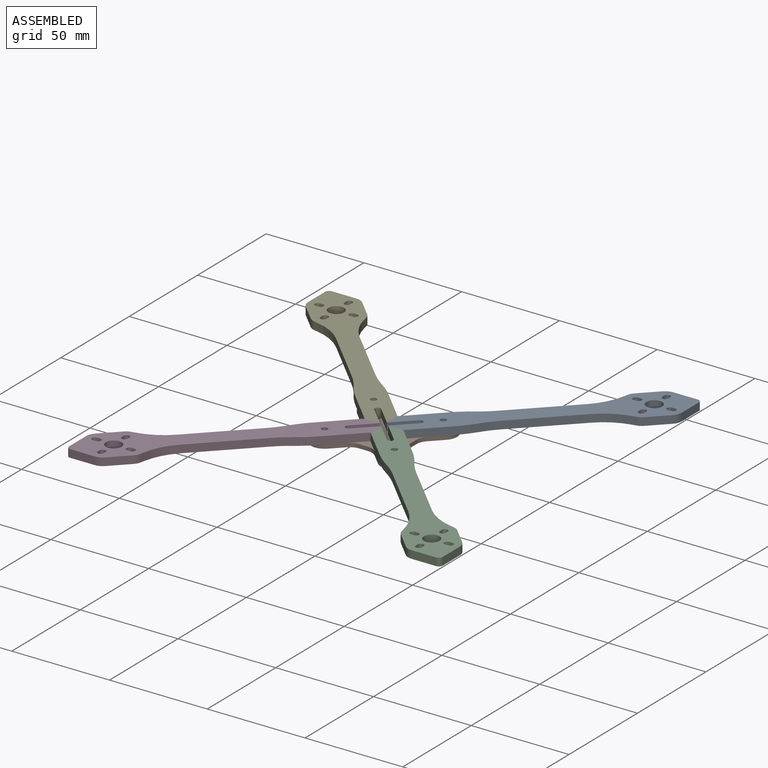
[diagram: assembled view]
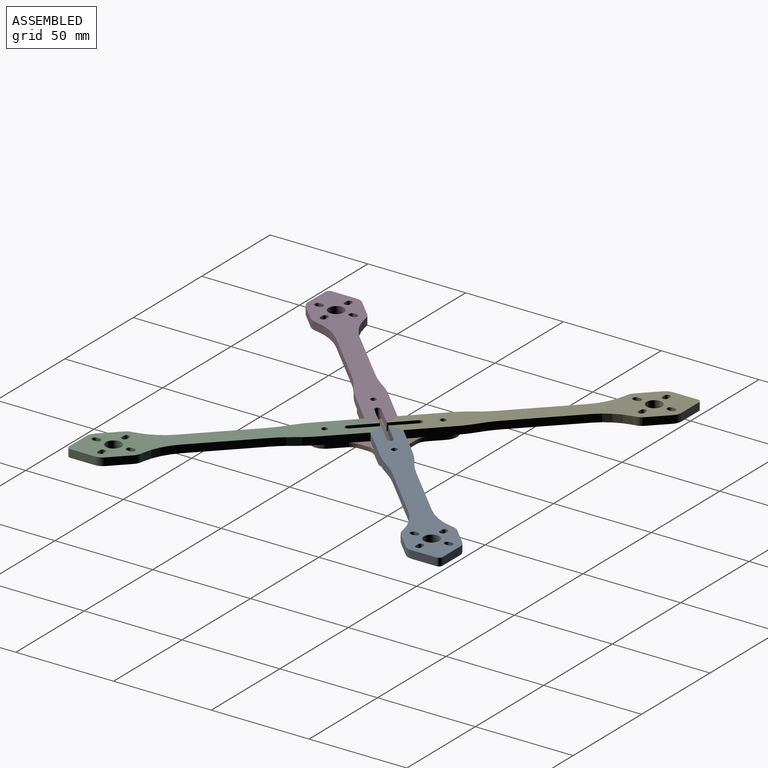
[diagram: assembled view, second angle]
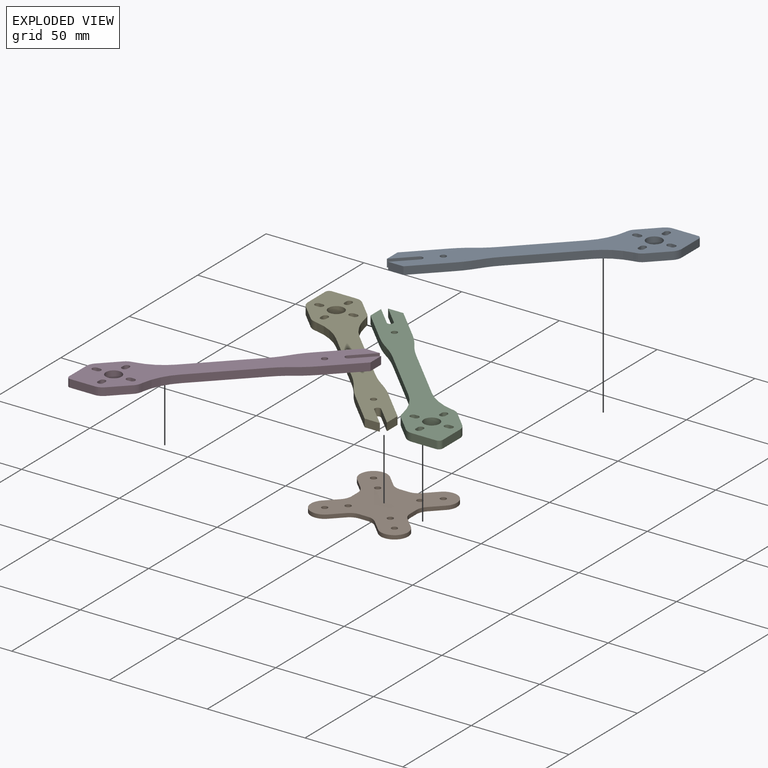
[diagram: exploded view]
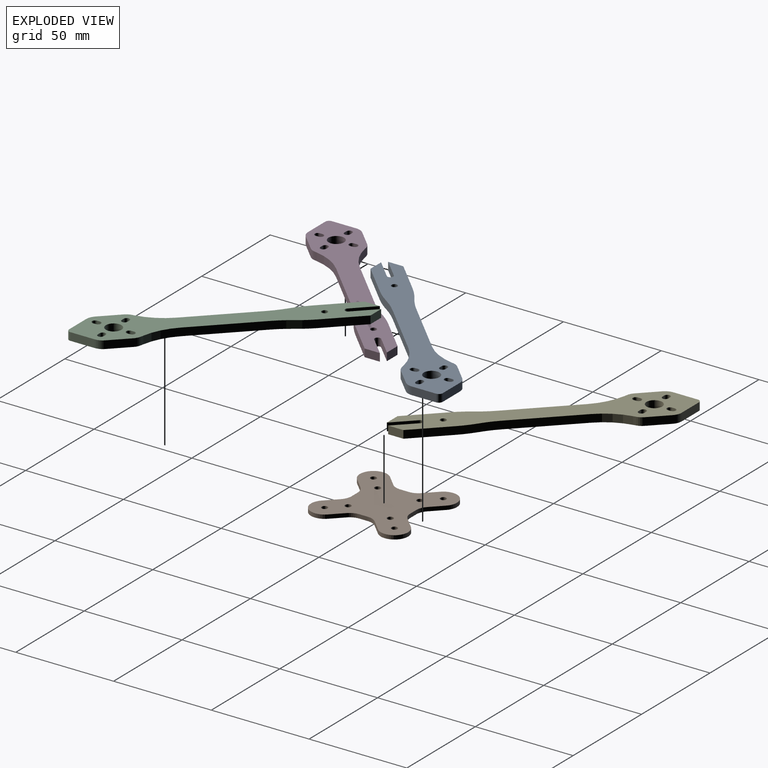
[diagram: exploded view, second angle]
ASSEMBLY  parts=5 mates=8
PART A: 46 faces, bbox 95.6x95.6x4 mm
  f0: cylinder r=1.5mm len=4mm, axis (0,0,-1), area 18.8mm2, adj f1,f43,f44,f45
  f1: plane 4x1.5mm, normal (0,-1,0), area 6mm2, adj f0,f2,f44,f45
  f2: cylinder r=1.5mm len=4mm, axis (0,0,-1), area 18.8mm2, adj f1,f43,f44,f45
  f3: plane 12.49x4mm, normal (0,1,0), area 49.9mm2, adj f4,f37,f44,f45
  f4: cylinder r=2mm len=4mm, axis (0,0,-1), area 12.6mm2, adj f3,f5,f44,f45
  f5: plane 12.49x4mm, normal (-1,0,0), area 49.9mm2, adj f4,f6,f44,f45
  f6: cylinder r=6mm len=4.24mm, axis (0,0,-1), area 18.8mm2, adj f5,f7,f44,f45
  f7: plane 8.45x8.45mm, normal (-0.71,-0.71,0), area 47.8mm2, adj f6,f8,f44,f45
  f8: cylinder r=6mm len=4mm, axis (0,0,-1), area 14.3mm2, adj f7,f9,f44,f45
  f9: plane 4x1.39mm, normal (-0.19,-0.98,0), area 5.7mm2, adj f8,f10,f44,f45
  f10: cylinder r=30mm len=15.57mm, axis (0,0,-1), area 71.5mm2, adj f9,f11,f44,f45
  f11: plane 26.92x26.92mm, normal (-0.71,-0.71,0), area 152.3mm2, adj f10,f12,f44,f45
  f12: cylinder r=50.5mm len=7.78mm, axis (0,0,-1), area 40.3mm2, adj f11,f13,f44,f45
  f13: cylinder r=50.5mm len=7.78mm, axis (0,0,-1), area 40.3mm2, adj f12,f14,f44,f45
  f14: plane 15.73x15.73mm, normal (-0.71,-0.71,0), area 89mm2, adj f13,f15,f44,f45
  f15: plane 7.78x4mm, normal (0,-1,0), area 31.1mm2, adj f14,f16,f44,f45
  f16: plane 9.72x9.72mm, normal (0.71,0.71,0), area 55mm2, adj f15,f17,f44,f45
  f17: cylinder r=1.5mm len=4mm, axis (0,0,-1), area 18.8mm2, adj f16,f18,f44,f45
  f18: plane 9.72x9.72mm, normal (-0.71,-0.71,0), area 55mm2, adj f17,f19,f44,f45
  f19: plane 7.78x4mm, normal (1,0,0), area 31.1mm2, adj f18,f20,f44,f45
  f20: plane 15.73x15.73mm, normal (0.71,0.71,0), area 89mm2, adj f19,f21,f44,f45
  f21: cylinder r=50.5mm len=7.78mm, axis (0,0,-1), area 40.3mm2, adj f20,f22,f44,f45
  f22: cylinder r=50.5mm len=7.78mm, axis (0,0,-1), area 40.3mm2, adj f21,f23,f44,f45
  f23: plane 26.92x26.92mm, normal (0.71,0.71,0), area 152.3mm2, adj f22,f24,f44,f45
  f24: cylinder r=30mm len=15.57mm, axis (0,0,-1), area 71.5mm2, adj f23,f25,f44,f45
  f25: plane 4x1.39mm, normal (0.98,0.19,0), area 5.7mm2, adj f24,f26,f44,f45
  f26: cylinder r=6mm len=4mm, axis (0,0,-1), area 14.3mm2, adj f25,f27,f44,f45
  f27: plane 8.45x8.45mm, normal (0.71,0.71,0), area 47.8mm2, adj f26,f37,f44,f45
  f28: cylinder r=1.5mm len=4mm, axis (0,0,-1), area 18.8mm2, adj f29,f40,f44,f45
  f29: plane 4x1.5mm, normal (-1,0,0), area 6mm2, adj f28,f30,f44,f45
  f30: cylinder r=1.5mm len=4mm, axis (0,0,-1), area 18.8mm2, adj f29,f40,f44,f45
  f31: plane 4x1.5mm, normal (0,-1,0), area 6mm2, adj f32,f41,f44,f45
  f32: cylinder r=1.5mm len=4mm, axis (0,0,-1), area 18.8mm2, adj f31,f33,f44,f45
  f33: plane 4x1.5mm, normal (0,1,0), area 6mm2, adj f32,f41,f44,f45
  f34: cylinder r=1.5mm len=4mm, axis (0,0,-1), area 18.8mm2, adj f35,f42,f44,f45
  f35: plane 4x1.5mm, normal (1,0,0), area 6mm2, adj f34,f36,f44,f45
  f36: cylinder r=1.5mm len=4mm, axis (0,0,-1), area 18.8mm2, adj f35,f42,f44,f45
  f37: cylinder r=6mm len=4.24mm, axis (0,0,-1), area 18.8mm2, adj f3,f27,f44,f45
  f38: cylinder r=1.5mm len=4mm, axis (0,0,-1), area 37.7mm2, adj f44,f45
  f39: cylinder r=4mm len=8mm, axis (0,0,-1), area 100.5mm2, adj f44,f45
  f40: plane 4x1.5mm, normal (1,0,0), area 6mm2, adj f28,f30,f44,f45
  f41: cylinder r=1.5mm len=4mm, axis (0,0,-1), area 18.8mm2, adj f31,f33,f44,f45
  f42: plane 4x1.5mm, normal (-1,0,0), area 6mm2, adj f34,f36,f44,f45
  f43: plane 4x1.5mm, normal (0,1,0), area 6mm2, adj f0,f2,f44,f45
  f44: plane 95.56x95.56mm, normal (0,0,1), area 1646.3mm2, adj f0,f1,f2,f3,f4,f5,f6,f7
  f45: plane 95.56x95.56mm, normal (0,0,-1), area 1646.3mm2, adj f0,f1,f2,f3,f4,f5,f6,f7
PART B: 34 faces, bbox 49.7x49.7x2 mm
  f0: plane 5.75x5.75mm, normal (0.71,0.71,0), area 16.3mm2, adj f1,f30,f32,f33
  f1: cylinder r=7mm len=11.95mm, axis (0,0,-1), area 44mm2, adj f0,f2,f32,f33
  f2: plane 5.75x5.75mm, normal (-0.71,-0.71,0), area 16.3mm2, adj f1,f3,f32,f33
  f3: cylinder r=7mm len=4.95mm, axis (0,0,-1), area 11mm2, adj f2,f4,f32,f33
  f4: plane 4.4x2mm, normal (-1,0,0), area 8.8mm2, adj f3,f5,f32,f33
  f5: cylinder r=7mm len=4.95mm, axis (0,0,-1), area 11mm2, adj f4,f6,f32,f33
  f6: plane 5.75x5.75mm, normal (-0.71,0.71,0), area 16.3mm2, adj f5,f7,f32,f33
  f7: cylinder r=7mm len=11.95mm, axis (0,0,-1), area 44mm2, adj f6,f8,f32,f33
  f8: plane 5.75x5.75mm, normal (0.71,-0.71,0), area 16.3mm2, adj f7,f9,f32,f33
  f9: cylinder r=7mm len=4.95mm, axis (0,0,-1), area 11mm2, adj f8,f10,f32,f33
  f10: plane 4.4x2mm, normal (0,-1,0), area 8.8mm2, adj f9,f11,f32,f33
  f11: cylinder r=7mm len=4.95mm, axis (0,0,-1), area 11mm2, adj f10,f12,f32,f33
  f12: plane 5.75x5.75mm, normal (-0.71,-0.71,0), area 16.3mm2, adj f11,f13,f32,f33
  f13: cylinder r=7mm len=11.95mm, axis (0,0,-1), area 44mm2, adj f12,f14,f32,f33
  f14: plane 5.75x5.75mm, normal (0.71,0.71,0), area 16.3mm2, adj f13,f15,f32,f33
  f15: cylinder r=7mm len=4.95mm, axis (0,0,-1), area 11mm2, adj f14,f16,f32,f33
  f16: plane 4.4x2mm, normal (1,0,0), area 8.8mm2, adj f15,f17,f32,f33
  f17: cylinder r=7mm len=4.95mm, axis (0,0,-1), area 11mm2, adj f16,f18,f32,f33
  f18: plane 5.75x5.75mm, normal (0.71,-0.71,0), area 16.3mm2, adj f17,f19,f32,f33
  f19: cylinder r=7mm len=11.95mm, axis (0,0,-1), area 44mm2, adj f18,f20,f32,f33
  f20: plane 5.75x5.75mm, normal (-0.71,0.71,0), area 16.3mm2, adj f19,f21,f32,f33
  f21: cylinder r=7mm len=4.95mm, axis (0,0,-1), area 11mm2, adj f20,f22,f32,f33
  f22: plane 4.4x2mm, normal (0,1,0), area 8.8mm2, adj f21,f30,f32,f33
  f23: cylinder r=1.5mm len=3mm, axis (0,0,-1), area 18.8mm2, adj f32,f33
  f24: cylinder r=1.5mm len=3mm, axis (0,0,-1), area 18.8mm2, adj f32,f33
  f25: cylinder r=1.5mm len=3mm, axis (0,0,-1), area 18.8mm2, adj f32,f33
  f26: cylinder r=1.5mm len=3mm, axis (0,0,-1), area 18.8mm2, adj f32,f33
  f27: cylinder r=1.5mm len=3mm, axis (0,0,-1), area 18.8mm2, adj f32,f33
  f28: cylinder r=1.5mm len=3mm, axis (0,0,-1), area 18.8mm2, adj f32,f33
  f29: cylinder r=1.5mm len=3mm, axis (0,0,-1), area 18.8mm2, adj f32,f33
  f30: cylinder r=7mm len=4.95mm, axis (0,0,-1), area 11mm2, adj f0,f22,f32,f33
  f31: cylinder r=1.5mm len=3mm, axis (0,0,-1), area 18.8mm2, adj f32,f33
  f32: plane 49.71x49.71mm, normal (0,0,1), area 1581.8mm2, adj f0,f1,f2,f3,f4,f5,f6,f7
  f33: plane 49.71x49.71mm, normal (0,0,-1), area 1581.8mm2, adj f0,f1,f2,f3,f4,f5,f6,f7
PART C: same geometry as A
PART D: same geometry as A
PART E: same geometry as A
PLACE A rot(axis=(0,0,-1),90deg) t=(1.04,-0.98,0.44)mm
PLACE B t=(1.04,-0.98,-1.56)mm
PLACE C rot(axis=(0,0,1),180deg) t=(1.04,-0.98,0.44)mm
PLACE D rot(axis=(0,0,1),90deg) t=(1.04,-0.98,0.44)mm
PLACE E t=(1.04,-0.98,0.44)mm
MATE revolute B.f23 <-> D.f17  axis (0,0,1) through (-9.74,-11.76,0.44)mm
MATE revolute B.f31 <-> A.f17  axis (0,0,1) through (11.82,9.8,0.44)mm
MATE revolute C.f38 <-> B.f13  axis (0,0,-1) through (18.9,-18.84,0.44)mm
MATE revolute C.f17 <-> B.f26  axis (0,0,-1) through (11.82,-11.76,0.44)mm
MATE revolute B.f1 <-> E.f38  axis (0,0,1) through (-16.81,16.87,0.44)mm
MATE revolute B.f19 <-> A.f38  axis (0,0,1) through (18.9,16.87,0.44)mm
MATE revolute B.f7 <-> D.f38  axis (0,0,1) through (-16.81,-18.84,0.44)mm
MATE revolute B.f29 <-> E.f17  axis (0,0,1) through (-9.74,9.8,0.44)mm
